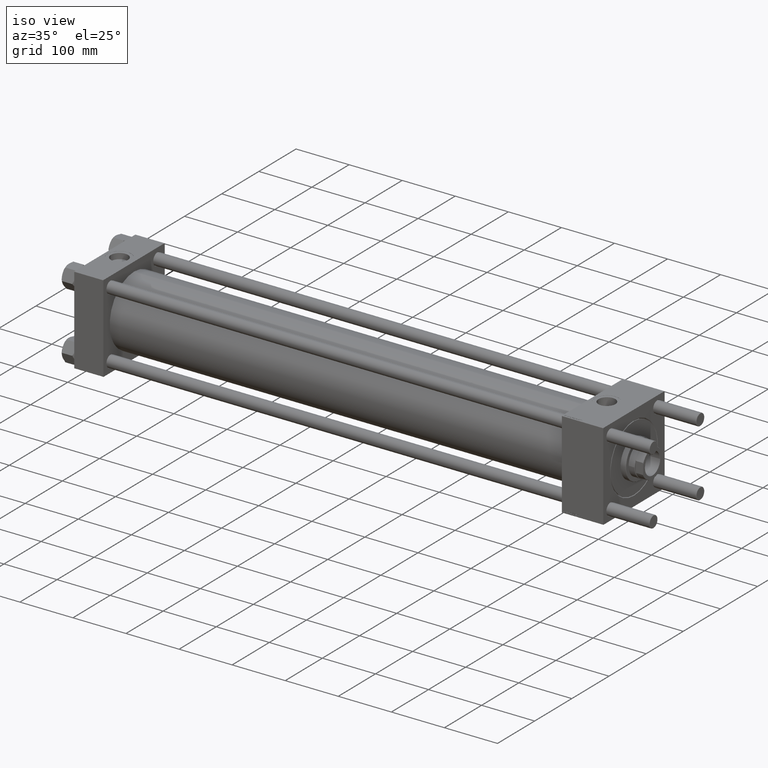
[diagram: clean part render]
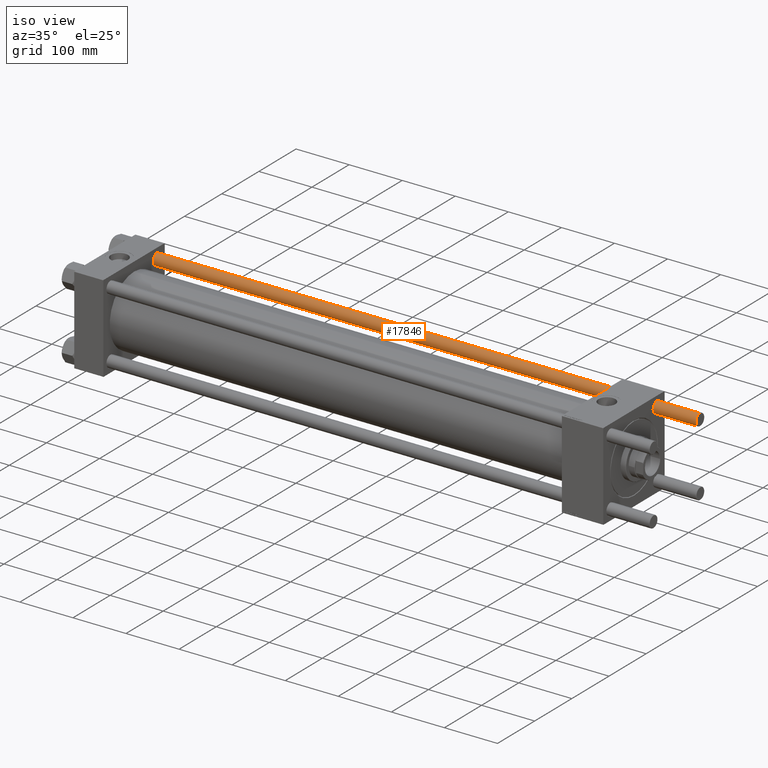
[diagram: same view with one face highlighted and labeled with its STEP entity id]
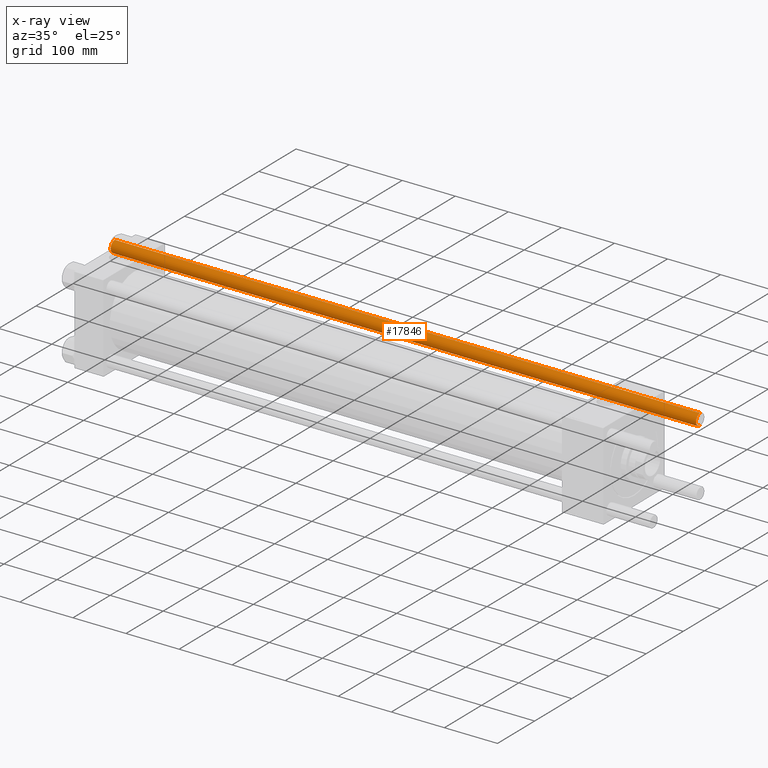
[diagram: x-ray of the same camera — body ghosted, the highlighted face saturated]
A machine part, iso view. The second image highlights one B-rep face of the part: STEP entity #17846.
The next image is the same camera in x-ray: the body ghosted, the highlighted face saturated — about 0% of this face is hidden behind the body in this view.
In plain terms, the highlighted cylindrical surface (edge-blend (fillet) strip) has radius 11 mm, axis along (1, -0, -0).
Its self-contained STEP definition (entity closure, byte-faithful):
#1088 = DIRECTION ( 'NONE',  ( 1.000000000000000000, 0.000000000000000000, 0.000000000000000000 ) ) ;
#1654 = EDGE_CURVE ( 'NONE', #14965, #31231, #24763, .T. ) ;
#2330 = EDGE_CURVE ( 'NONE', #23510, #26947, #8227, .T. ) ;
#2770 = DIRECTION ( 'NONE',  ( -0.000000000000000000, -0.000000000000000000, -1.000000000000000000 ) ) ;
#7931 = CARTESIAN_POINT ( 'NONE',  ( 11.00000000000000000, 1.347111479062088405E-15, 1104.000000000000000 ) ) ;
#8146 = CIRCLE ( 'NONE', #19213, 11.00000000000000000 ) ;
#8227 = LINE ( 'NONE', #7931, #31868 ) ;
#8510 = ORIENTED_EDGE ( 'NONE', *, *, #1654, .T. ) ;
#8560 = ORIENTED_EDGE ( 'NONE', *, *, #57278, .T. ) ;
#12734 = FACE_OUTER_BOUND ( 'NONE', #28087, .T. ) ;
#13304 = CARTESIAN_POINT ( 'NONE',  ( 0.000000000000000000, 0.000000000000000000, 1104.000000000000000 ) ) ;
#14312 = DIRECTION ( 'NONE',  ( 1.000000000000000000, 0.000000000000000000, 0.000000000000000000 ) ) ;
#14965 = VERTEX_POINT ( 'NONE', #37286 ) ;
#17074 = CYLINDRICAL_SURFACE ( 'NONE', #43263, 11.00000000000000000 ) ;
#17846 = ADVANCED_FACE ( 'NONE', ( #12734 ), #17074, .T. ) ;
#19213 = AXIS2_PLACEMENT_3D ( 'NONE', #40748, #32069, #1088 ) ;
#19565 = CARTESIAN_POINT ( 'NONE',  ( 11.00000000000000000, 1.347111479062088405E-15, 1103.500000000000455 ) ) ;
#22057 = CARTESIAN_POINT ( 'NONE',  ( 11.00000000000000000, 1.347111479062088405E-15, 0.5000000000001669775 ) ) ;
#22561 = VECTOR ( 'NONE', #2770, 1000.000000000000000 ) ;
#23510 = VERTEX_POINT ( 'NONE', #19565 ) ;
#23843 = AXIS2_PLACEMENT_3D ( 'NONE', #53133, #49629, #14312 ) ;
#24763 = LINE ( 'NONE', #42421, #22561 ) ;
#26947 = VERTEX_POINT ( 'NONE', #22057 ) ;
#28087 = EDGE_LOOP ( 'NONE', ( #33928, #8560, #8510, #41886 ) ) ;
#30974 = DIRECTION ( 'NONE',  ( -0.000000000000000000, -0.000000000000000000, -1.000000000000000000 ) ) ;
#31231 = VERTEX_POINT ( 'NONE', #37340 ) ;
#31868 = VECTOR ( 'NONE', #44111, 1000.000000000000000 ) ;
#32069 = DIRECTION ( 'NONE',  ( -0.000000000000000000, -0.000000000000000000, 1.000000000000000000 ) ) ;
#33928 = ORIENTED_EDGE ( 'NONE', *, *, #2330, .F. ) ;
#37286 = CARTESIAN_POINT ( 'NONE',  ( -11.00000000000000000, 0.000000000000000000, 1103.500000000000455 ) ) ;
#37340 = CARTESIAN_POINT ( 'NONE',  ( -11.00000000000000000, 0.000000000000000000, 0.5000000000001669775 ) ) ;
#40748 = CARTESIAN_POINT ( 'NONE',  ( 0.000000000000000000, 0.000000000000000000, 0.5000000000001669775 ) ) ;
#41886 = ORIENTED_EDGE ( 'NONE', *, *, #52719, .T. ) ;
#42421 = CARTESIAN_POINT ( 'NONE',  ( -11.00000000000000000, 0.000000000000000000, 1104.000000000000000 ) ) ;
#43263 = AXIS2_PLACEMENT_3D ( 'NONE', #13304, #30974, #56152 ) ;
#44111 = DIRECTION ( 'NONE',  ( -0.000000000000000000, -0.000000000000000000, -1.000000000000000000 ) ) ;
#49629 = DIRECTION ( 'NONE',  ( 0.000000000000000000, 0.000000000000000000, -1.000000000000000000 ) ) ;
#51580 = CIRCLE ( 'NONE', #23843, 11.00000000000000000 ) ;
#52719 = EDGE_CURVE ( 'NONE', #31231, #26947, #8146, .T. ) ;
#53133 = CARTESIAN_POINT ( 'NONE',  ( 0.000000000000000000, 0.000000000000000000, 1103.500000000000455 ) ) ;
#56152 = DIRECTION ( 'NONE',  ( -1.000000000000000000, 0.000000000000000000, 0.000000000000000000 ) ) ;
#57278 = EDGE_CURVE ( 'NONE', #23510, #14965, #51580, .T. ) ;